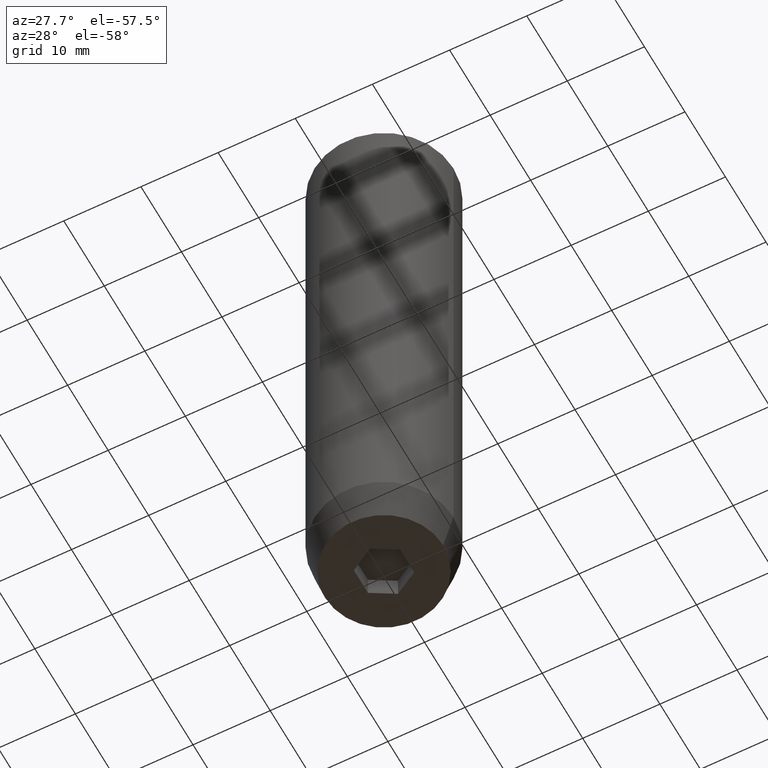
[diagram: clean part render]
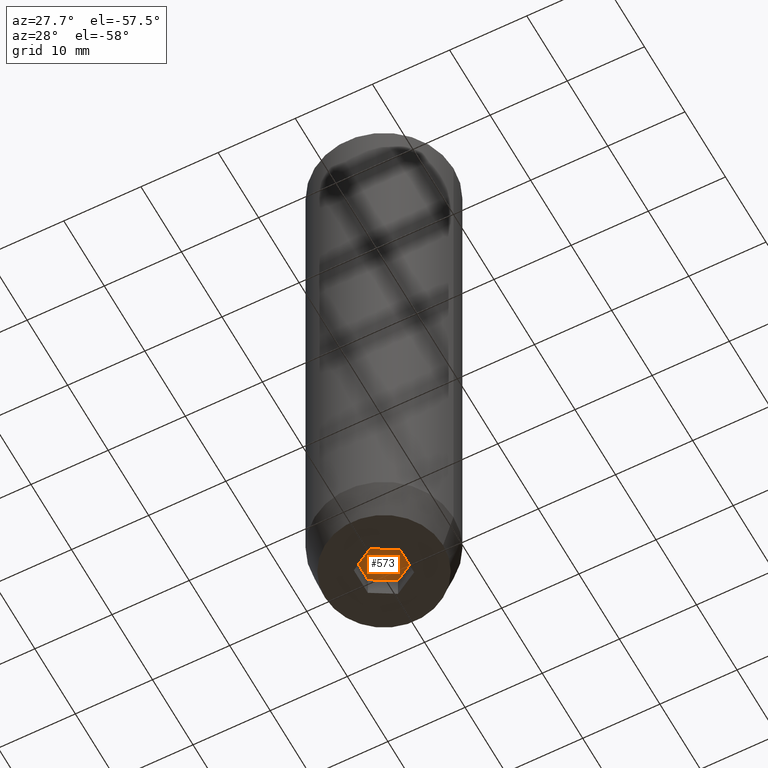
[diagram: same view with one face highlighted and labeled with its STEP entity id]
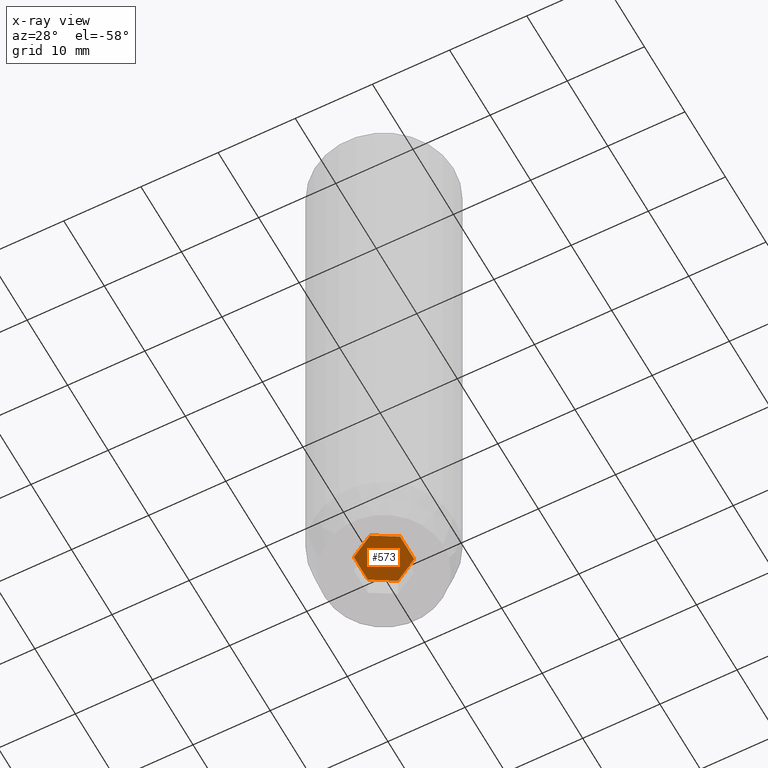
[diagram: x-ray of the same camera — body ghosted, the highlighted face saturated]
A machine part, auxiliary view. The second image highlights one B-rep face of the part: STEP entity #573.
The next image is the same camera in x-ray: the body ghosted, the highlighted face saturated — about 0% of this face is hidden behind the body in this view.
In plain terms, the highlighted planar face has unit normal (0, 0, -1).
Its self-contained STEP definition (entity closure, byte-faithful):
#3 = EDGE_CURVE ( 'NONE', #21, #324, #40, .T. ) ;
#5 = AXIS2_PLACEMENT_3D ( 'NONE', #425, #422, #18 ) ;
#18 = DIRECTION ( 'NONE',  ( -1.000000000000000000, 0.000000000000000000, -0.000000000000000000 ) ) ;
#19 = CARTESIAN_POINT ( 'NONE',  ( 3.000000000000000000, 0.000000000000000000, -77.20000000000001705 ) ) ;
#21 = VERTEX_POINT ( 'NONE', #126 ) ;
#40 = LINE ( 'NONE', #225, #389 ) ;
#66 = CARTESIAN_POINT ( 'NONE',  ( -1.084202172485504434E-16, 3.464101615137754830, -77.20000000000001705 ) ) ;
#71 = VECTOR ( 'NONE', #406, 999.9999999999998863 ) ;
#95 = LINE ( 'NONE', #372, #71 ) ;
#109 = FACE_OUTER_BOUND ( 'NONE', #492, .T. ) ;
#115 = ORIENTED_EDGE ( 'NONE', *, *, #238, .T. ) ;
#117 = LINE ( 'NONE', #219, #468 ) ;
#126 = CARTESIAN_POINT ( 'NONE',  ( 3.000000000000000000, -1.732050807568876527, -77.20000000000001705 ) ) ;
#131 = ORIENTED_EDGE ( 'NONE', *, *, #537, .T. ) ;
#150 = DIRECTION ( 'NONE',  ( 0.000000000000000000, -1.000000000000000000, 0.000000000000000000 ) ) ;
#161 = CARTESIAN_POINT ( 'NONE',  ( -2.168404344971008868E-16, -3.464101615137754830, -77.20000000000001705 ) ) ;
#164 = ORIENTED_EDGE ( 'NONE', *, *, #387, .T. ) ;
#168 = VECTOR ( 'NONE', #150, 1000.000000000000000 ) ;
#174 = VERTEX_POINT ( 'NONE', #452 ) ;
#217 = DIRECTION ( 'NONE',  ( -0.8660254037844385966, -0.5000000000000001110, 0.000000000000000000 ) ) ;
#219 = CARTESIAN_POINT ( 'NONE',  ( 1.500000000000000222, 2.598076211353315568, -77.20000000000001705 ) ) ;
#225 = CARTESIAN_POINT ( 'NONE',  ( 1.500000000000000222, -2.598076211353315568, -77.20000000000001705 ) ) ;
#238 = EDGE_CURVE ( 'NONE', #174, #21, #326, .T. ) ;
#244 = LINE ( 'NONE', #281, #283 ) ;
#265 = DIRECTION ( 'NONE',  ( 0.8660254037844385966, -0.5000000000000001110, 0.000000000000000000 ) ) ;
#266 = VERTEX_POINT ( 'NONE', #349 ) ;
#281 = CARTESIAN_POINT ( 'NONE',  ( -3.000000000000000444, -7.511572993685800087E-16, -77.20000000000001705 ) ) ;
#283 = VECTOR ( 'NONE', #521, 1000.000000000000000 ) ;
#301 = EDGE_CURVE ( 'NONE', #527, #174, #117, .T. ) ;
#324 = VERTEX_POINT ( 'NONE', #161 ) ;
#325 = CARTESIAN_POINT ( 'NONE',  ( -1.500000000000000666, -2.598076211353316456, -77.20000000000001705 ) ) ;
#326 = LINE ( 'NONE', #19, #168 ) ;
#348 = ORIENTED_EDGE ( 'NONE', *, *, #3, .T. ) ;
#349 = CARTESIAN_POINT ( 'NONE',  ( -3.000000000000000000, -1.732050807568877859, -77.20000000000001705 ) ) ;
#356 = ORIENTED_EDGE ( 'NONE', *, *, #301, .T. ) ;
#360 = LINE ( 'NONE', #325, #459 ) ;
#372 = CARTESIAN_POINT ( 'NONE',  ( -1.499999999999999556, 2.598076211353316012, -77.20000000000001705 ) ) ;
#383 = VERTEX_POINT ( 'NONE', #586 ) ;
#387 = EDGE_CURVE ( 'NONE', #383, #527, #95, .T. ) ;
#389 = VECTOR ( 'NONE', #217, 1000.000000000000000 ) ;
#406 = DIRECTION ( 'NONE',  ( 0.8660254037844387076, 0.4999999999999999445, 0.000000000000000000 ) ) ;
#410 = EDGE_CURVE ( 'NONE', #324, #266, #360, .T. ) ;
#422 = DIRECTION ( 'NONE',  ( 0.000000000000000000, 0.000000000000000000, -1.000000000000000000 ) ) ;
#425 = CARTESIAN_POINT ( 'NONE',  ( 0.000000000000000000, 0.000000000000000000, -77.20000000000001705 ) ) ;
#452 = CARTESIAN_POINT ( 'NONE',  ( 3.000000000000000000, 1.732050807568876527, -77.20000000000001705 ) ) ;
#459 = VECTOR ( 'NONE', #555, 1000.000000000000000 ) ;
#466 = PLANE ( 'NONE',  #5 ) ;
#468 = VECTOR ( 'NONE', #265, 1000.000000000000000 ) ;
#492 = EDGE_LOOP ( 'NONE', ( #164, #356, #115, #348, #585, #131 ) ) ;
#521 = DIRECTION ( 'NONE',  ( -2.503857664561932376E-16, 1.000000000000000000, 0.000000000000000000 ) ) ;
#527 = VERTEX_POINT ( 'NONE', #66 ) ;
#537 = EDGE_CURVE ( 'NONE', #266, #383, #244, .T. ) ;
#555 = DIRECTION ( 'NONE',  ( -0.8660254037844385966, 0.5000000000000001110, 0.000000000000000000 ) ) ;
#573 = ADVANCED_FACE ( 'NONE', ( #109 ), #466, .T. ) ;
#585 = ORIENTED_EDGE ( 'NONE', *, *, #410, .T. ) ;
#586 = CARTESIAN_POINT ( 'NONE',  ( -3.000000000000000888, 1.732050807568876527, -77.20000000000001705 ) ) ;